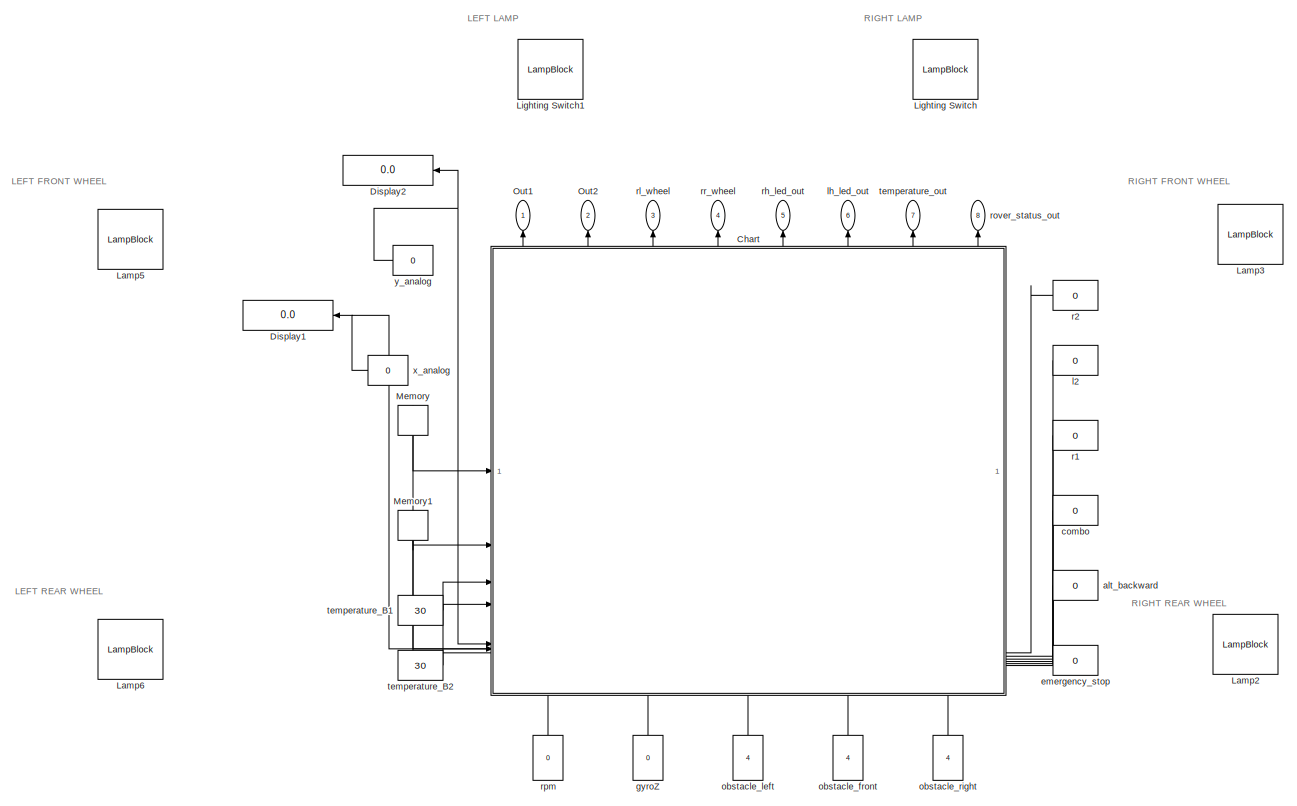
[diagram: root canvas - part 1/2, full width, middle band]
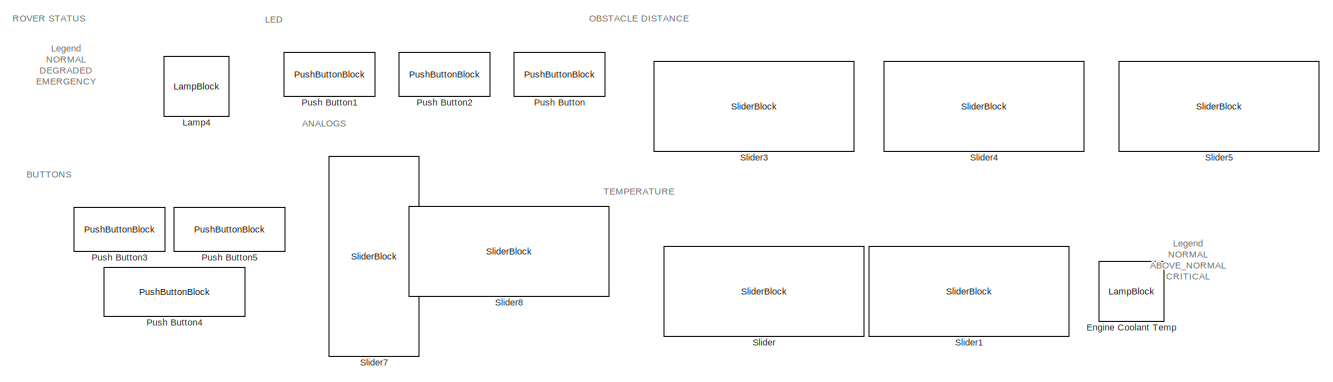
[diagram: root canvas - part 2/2, full width, bottom band]
MODEL slx_f205992a6259
KIND model
CONFIG AbsTol = auto
CONFIG EnableMultiTasking = off
CONFIG FixedStep = auto
CONFIG MaxStep = auto
CONFIG MinStep = auto
CONFIG RelTol = 1e-3
CONFIG SampleTimeConstraint = Unconstrained
CONFIG SolverName = VariableStepAuto
CONFIG StartTime = 0.0
CONFIG StopTime = 10.0
WORKSPACE source: mxarray member
WORKSPACE state_1 = 0
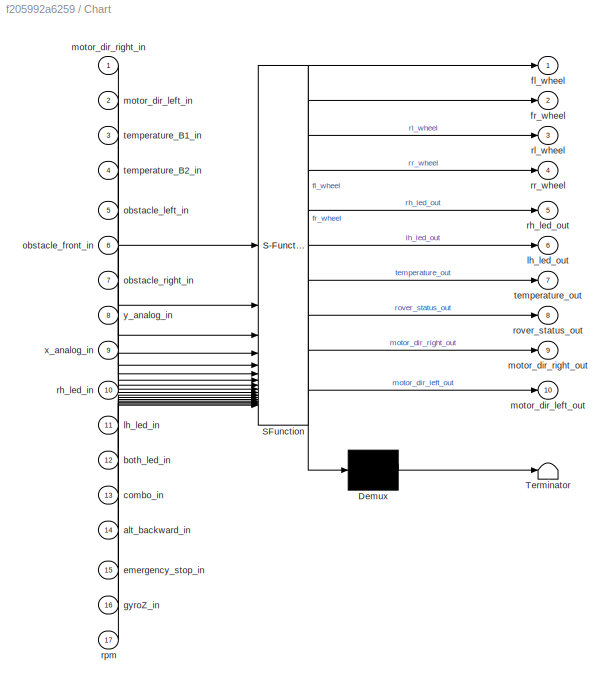
BLOCK [SubSystem] Chart
  ErrorFcn = Stateflow.Translate.translate
  PermitHierarchicalResolution = ExplicitOnly
  PortSchema = {"entries":[{"content":{"sides":[{"content":{"connectorIds":["In8","In9","Out9","In1","Out10","In2","In3","In4"]},"type":"ConnectorPlacement.EquallySpacedRectSide","uuid":"7cce3b45-ffbe-4cab-b07c-1dbc7baad8c5"},{"content":{"connectorIds":["In10","In11","In12","In13","In14","In15"],"side":"RIGHT"},"type":"ConnectorPlacement.EquallySpacedRectSide","uuid":"3e6480be-640f-4a32-82b3-6b3437d92763"},{"con...<+550ch>
  SFBlockType = Chart
  TreatAsAtomicUnit = on
BLOCK [Demux] Chart/ Demux 
  Outputs = 1
BLOCK [S-Function] Chart/ SFunction 
  EnableBusSupport = on
  FunctionName = sf_sfun
  PortCounts = [17 11]
  SFcnIsStateOwnerBlock = off
  SFunctionDeploymentMode = off
  Tag = Stateflow S-Function 3
BLOCK [Terminator] Chart/ Terminator 
BLOCK [Inport] Chart/alt_backward_in
  Port = 14
BLOCK [Inport] Chart/both_led_in
  Port = 12
BLOCK [Inport] Chart/combo_in
  Port = 13
BLOCK [Inport] Chart/emergency_stop_in
  Port = 15
BLOCK [Outport] Chart/fl_wheel
BLOCK [Outport] Chart/fr_wheel
  Port = 2
BLOCK [Inport] Chart/gyroZ_in
  Port = 16
BLOCK [Inport] Chart/lh_led_in
  Port = 11
BLOCK [Outport] Chart/lh_led_out
  Port = 6
BLOCK [Inport] Chart/motor_dir_left_in
  Port = 2
BLOCK [Outport] Chart/motor_dir_left_out
  Port = 10
BLOCK [Inport] Chart/motor_dir_right_in
BLOCK [Outport] Chart/motor_dir_right_out
  Port = 9
BLOCK [Inport] Chart/obstacle_front_in
  Port = 6
BLOCK [Inport] Chart/obstacle_left_in
  Port = 5
BLOCK [Inport] Chart/obstacle_right_in
  Port = 7
BLOCK [Inport] Chart/rh_led_in
  Port = 10
BLOCK [Outport] Chart/rh_led_out
  Port = 5
BLOCK [Outport] Chart/rl_wheel
  Port = 3
BLOCK [Outport] Chart/rover_status_out
  Port = 8
BLOCK [Inport] Chart/rpm
  Port = 17
BLOCK [Outport] Chart/rr_wheel
  Port = 4
BLOCK [Inport] Chart/temperature_B1_in
  Port = 3
BLOCK [Inport] Chart/temperature_B2_in
  Port = 4
BLOCK [Outport] Chart/temperature_out
  Port = 7
BLOCK [Inport] Chart/x_analog_in
  Port = 9
BLOCK [Inport] Chart/y_analog_in
  Port = 8
BLOCK [Display] Display1
  Decimation = 1
  NameLocation = top
BLOCK [Display] Display2
  Decimation = 1
  NameLocation = top
BLOCK [LampBlock] Engine Coolant Temp
  Icon = EngineCoolantTemp
  LabelPosition = Hide
BLOCK [LampBlock] Lamp2
  LabelPosition = Hide
BLOCK [LampBlock] Lamp3
  LabelPosition = Hide
BLOCK [LampBlock] Lamp4
  LabelPosition = Hide
BLOCK [LampBlock] Lamp5
  LabelPosition = Hide
BLOCK [LampBlock] Lamp6
  LabelPosition = Hide
BLOCK [LampBlock] Lighting Switch
  Icon = LightingSwitch
  LabelPosition = Hide
  NameLocation = top
BLOCK [LampBlock] Lighting Switch1
  Icon = LightingSwitch
  LabelPosition = Hide
  NameLocation = top
BLOCK [Memory] Memory
  NameLocation = left
BLOCK [Memory] Memory1
  NameLocation = left
BLOCK [Outport] Out1
  NameLocation = right
BLOCK [Outport] Out2
  NameLocation = right
  Port = 2
BLOCK [PushButtonBlock] Push Button
  ButtonText = R2
  OffValue = 0.000000
BLOCK [PushButtonBlock] Push Button1
  ButtonText = L2
  OffValue = 0.000000
BLOCK [PushButtonBlock] Push Button2
  ButtonText = R1
  OffValue = 0.000000
BLOCK [PushButtonBlock] Push Button3
  ButtonText = COMBO
  ButtonType = Latch
  OffValue = 0.000000
BLOCK [PushButtonBlock] Push Button4
  ButtonText = EMERGENCY_STOP
  OffValue = 0.000000
BLOCK [PushButtonBlock] Push Button5
  ButtonText = ALT_BACKWARD
  OffValue = 0.000000
BLOCK [SliderBlock] Slider
  ScaleMax = 60
BLOCK [SliderBlock] Slider1
  ScaleMax = 60
BLOCK [SliderBlock] Slider3
  ScaleMax = 4
BLOCK [SliderBlock] Slider4
  ScaleMax = 4
BLOCK [SliderBlock] Slider5
  ScaleMax = 4
BLOCK [SliderBlock] Slider7
  NameLocation = left
  ScaleMax = 127
  ScaleMin = -127
BLOCK [SliderBlock] Slider8
  ScaleMax = 127
  ScaleMin = -127
BLOCK [Constant] alt_backward
  NameLocation = top
  OutDataTypeStr = uint8
  Value = 0
BLOCK [Constant] combo
  NameLocation = top
  OutDataTypeStr = uint8
  Value = 0
BLOCK [Constant] emergency_stop
  NameLocation = top
  OutDataTypeStr = uint8
  Value = 0
BLOCK [Constant] gyroZ
  NameLocation = right
  Value = 0
BLOCK [Constant] l2
  NameLocation = top
  OutDataTypeStr = uint8
  Value = 0
BLOCK [Outport] lh_led_out
  NameLocation = right
  Port = 6
BLOCK [Constant] obstacle_front
  NameLocation = right
  Value = 4
BLOCK [Constant] obstacle_left
  NameLocation = right
  Value = 4
BLOCK [Constant] obstacle_right
  NameLocation = right
  Value = 4
BLOCK [Constant] r1
  NameLocation = top
  OutDataTypeStr = uint8
  Value = 0
BLOCK [Constant] r2
  NameLocation = top
  OutDataTypeStr = uint8
  Value = 0
BLOCK [Outport] rh_led_out
  NameLocation = right
  Port = 5
BLOCK [Outport] rl_wheel
  NameLocation = right
  Port = 3
BLOCK [Outport] rover_status_out
  NameLocation = right
  Port = 8
BLOCK [Constant] rpm
  NameLocation = right
  Value = 0
BLOCK [Outport] rr_wheel
  NameLocation = right
  Port = 4
BLOCK [Constant] temperature_B1
  Value = 30
BLOCK [Constant] temperature_B2
  Value = 30
BLOCK [Outport] temperature_out
  NameLocation = right
  Port = 7
BLOCK [Constant] x_analog
  NameLocation = top
  OutDataTypeStr = int8
  Value = 0
BLOCK [Constant] y_analog
  NameLocation = top
  OutDataTypeStr = int8
  Value = 0
ANNOTATION (root): Legend NORMAL ABOVE_NORMAL CRITICAL
ANNOTATION (root): Legend NORMAL DEGRADED EMERGENCY
ANNOTATION (root): ANALOGS
ANNOTATION (root): BUTTONS
ANNOTATION (root): LED
ANNOTATION (root): LEFT FRONT WHEEL
ANNOTATION (root): LEFT LAMP
ANNOTATION (root): LEFT REAR WHEEL
ANNOTATION (root): OBSTACLE DISTANCE
ANNOTATION (root): RIGHT FRONT WHEEL
ANNOTATION (root): RIGHT LAMP
ANNOTATION (root): RIGHT REAR WHEEL
ANNOTATION (root): ROVER STATUS
ANNOTATION (root): TEMPERATURE
LINE Chart:1 -> Out1:1
LINE Chart:10 -> Memory1:1
LINE Chart:2 -> Out2:1
LINE Chart:3 -> rl_wheel:1
LINE Chart:4 -> rr_wheel:1
LINE Chart:5 -> rh_led_out:1
LINE Chart:6 -> lh_led_out:1
LINE Chart:7 -> temperature_out:1
LINE Chart:8 -> rover_status_out:1
LINE Chart:9 -> Memory:1
LINE Memory1:1 -> Chart:2
LINE Memory:1 -> Chart:1
LINE alt_backward:1 -> Chart:14
LINE combo:1 -> Chart:13
LINE emergency_stop:1 -> Chart:15
LINE gyroZ:1 -> Chart:16
LINE l2:1 -> Chart:11
LINE obstacle_front:1 -> Chart:6
LINE obstacle_left:1 -> Chart:5
LINE obstacle_right:1 -> Chart:7
LINE r1:1 -> Chart:12
LINE r2:1 -> Chart:10
LINE rpm:1 -> Chart:17
LINE temperature_B1:1 -> Chart:3
LINE temperature_B2:1 -> Chart:4
NET x_analog:1 -> Chart:9, Display1:1
NET y_analog:1 -> Chart:8, Display2:1
note: NET lines group one-source signal fan-out (src -> all destinations, sorted); 1:1 wires keep LINE
CHART Chart states=141 transitions=242
  STATE_LABEL 'BOARD_1'
  STATE_LABEL 'WAITING_INITIALIZATION\nen:\ninit_encoder();\ninit_encoder();\ninit_encoder();\ninit_encoder();\ninit_motor_driver();\ninit_motor_driver();'
  STATE_LABEL 'init_encoder'
  STATE_LABEL 'SCRIPT:\nfunction init_encoder()\n\nend\n'
  STATE_LABEL 'init_motor_driver'
  STATE_LABEL 'SCRIPT:\nfunction init_motor_driver()\n\nend\n \n'
  STATE_LABEL 'INITIALIZED\n\n'
  STATE_LABEL 'WORKING'
  STATE_LABEL 'LED_CONTROLLER'
  STATE_LABEL 'SINGLE'
  STATE_LABEL 'RIGHT'
  STATE_LABEL 'OFF'
  STATE_LABEL 'ON'
  STATE_LABEL '[RH_LED_OFF]\n{rh_led.off()}'
  STATE_LABEL '[RH_LED_ON]\n{rh_led.on()}'
  STATE_LABEL 'LEFT'
  STATE_LABEL 'OFF'
  STATE_LABEL 'ON'
  STATE_LABEL '[LH_LED_OFF]\n{lh_led.off()}'
  STATE_LABEL '[LH_LED_ON]\n{lh_led.on()}'
  STATE_LABEL 'rh_led'
  STATE_LABEL 'on'
  STATE_LABEL 'SCRIPT:\nfunction on\n\nglobal rh_led_out\n\nrh_led_out = true;\n\nend\n \n'
  STATE_LABEL 'off'
  STATE_LABEL 'SCRIPT:\nfunction off\n\nglobal rh_led_out\n\nrh_led_out = false;\n\nend\n \n'
  STATE_LABEL 'BOTH'
  STATE_LABEL 'WAITING_ON'
  STATE_LABEL 'ON\nen:\nrh_led.on();\nlh_led.on()'
  STATE_LABEL 'WAITING_OFF'
  STATE_LABEL '[LEDS_BTN_RELEASED]'
  STATE_LABEL '[LEDS_BTN_PRESSED]'
  STATE_LABEL 'lh_led'
  STATE_LABEL 'on'
  STATE_LABEL 'SCRIPT:\nfunction on\n\nglobal lh_led_out\n\nlh_led_out = true;\n\nend\n \n'
  STATE_LABEL 'off'
  STATE_LABEL 'SCRIPT:\nfunction off\n\nglobal lh_led_out\n\nlh_led_out = false;\n\nend\n \n'
  STATE_LABEL '[LEDS_BTN_PRESSED]'
  STATE_LABEL '[LEDS_BTN_RELEASED]\n{rh_led.off(); lh_led.off()}'
  STATE_LABEL 'STATE_UPDATING\n'
  STATE_LABEL 'rpm_motors = read_rpm'
CHART  states=0 transitions=0
